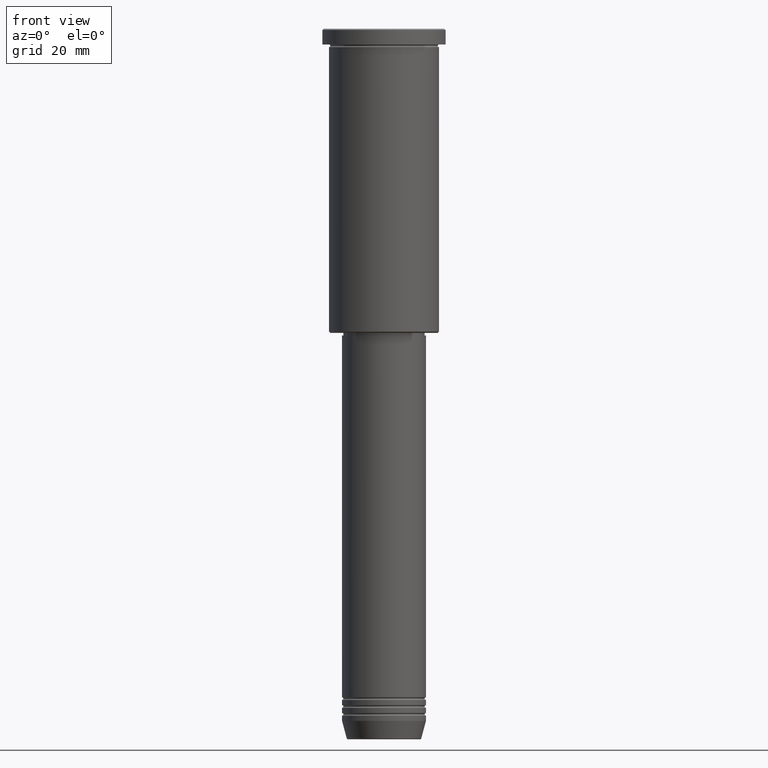
[diagram: clean part render]
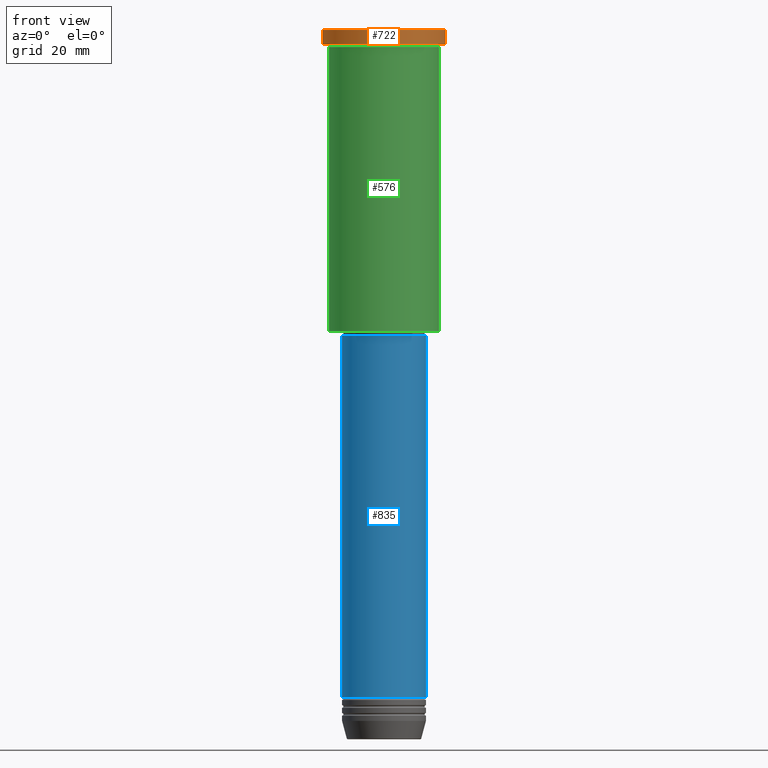
[diagram: same view with three faces highlighted in distinct colors, each labeled with its STEP entity id]
A machine part, front view with three faces highlighted in distinct colors.
Their STEP definitions:

[orange] entity #722 — the highlighted cylindrical surface (partial cylindrical patch) has radius 23.5 mm, axis along (-0, -0, 1).
#38 = FACE_OUTER_BOUND ( 'NONE', #899, .T. ) ;
#49 = CARTESIAN_POINT ( 'NONE',  ( 23.50000000000000000, 0.000000000000000000, 0.000000000000000000 ) ) ;
#50 = DIRECTION ( 'NONE',  ( -0.000000000000000000, -0.000000000000000000, 1.000000000000000000 ) ) ;
#84 = AXIS2_PLACEMENT_3D ( 'NONE', #213, #1138, #494 ) ;
#105 = CARTESIAN_POINT ( 'NONE',  ( 23.50000000000000000, 0.000000000000000000, -5.999999999999994671 ) ) ;
#147 = DIRECTION ( 'NONE',  ( 1.000000000000000000, 0.000000000000000000, 0.000000000000000000 ) ) ;
#149 = EDGE_CURVE ( 'NONE', #356, #553, #524, .T. ) ;
#162 = EDGE_CURVE ( 'NONE', #553, #456, #497, .T. ) ;
#201 = CARTESIAN_POINT ( 'NONE',  ( 23.50000000000000000, 0.000000000000000000, -0.5000000000000004441 ) ) ;
#213 = CARTESIAN_POINT ( 'NONE',  ( 0.000000000000000000, 0.000000000000000000, 0.000000000000000000 ) ) ;
#233 = AXIS2_PLACEMENT_3D ( 'NONE', #614, #974, #147 ) ;
#317 = ORIENTED_EDGE ( 'NONE', *, *, #1137, .F. ) ;
#343 = CARTESIAN_POINT ( 'NONE',  ( -23.50000000000000000, 2.877919977996280320E-15, -0.5000000000000004441 ) ) ;
#356 = VERTEX_POINT ( 'NONE', #105 ) ;
#419 = CYLINDRICAL_SURFACE ( 'NONE', #84, 23.50000000000000000 ) ;
#430 = AXIS2_PLACEMENT_3D ( 'NONE', #564, #1102, #657 ) ;
#451 = VECTOR ( 'NONE', #1061, 1000.000000000000000 ) ;
#456 = VERTEX_POINT ( 'NONE', #343 ) ;
#494 = DIRECTION ( 'NONE',  ( 1.000000000000000000, 0.000000000000000000, 0.000000000000000000 ) ) ;
#497 = CIRCLE ( 'NONE', #233, 23.50000000000000000 ) ;
#524 = LINE ( 'NONE', #49, #451 ) ;
#553 = VERTEX_POINT ( 'NONE', #201 ) ;
#564 = CARTESIAN_POINT ( 'NONE',  ( 0.000000000000000000, 0.000000000000000000, -5.999999999999994671 ) ) ;
#614 = CARTESIAN_POINT ( 'NONE',  ( 0.000000000000000000, 0.000000000000000000, -0.5000000000000004441 ) ) ;
#657 = DIRECTION ( 'NONE',  ( 1.000000000000000000, 0.000000000000000000, 0.000000000000000000 ) ) ;
#669 = CARTESIAN_POINT ( 'NONE',  ( -23.50000000000000000, 2.877919977996280320E-15, -5.999999999999994671 ) ) ;
#722 = ADVANCED_FACE ( 'NONE', ( #38 ), #419, .T. ) ;
#735 = ORIENTED_EDGE ( 'NONE', *, *, #1052, .T. ) ;
#750 = ORIENTED_EDGE ( 'NONE', *, *, #162, .T. ) ;
#770 = LINE ( 'NONE', #1141, #1107 ) ;
#819 = VERTEX_POINT ( 'NONE', #669 ) ;
#899 = EDGE_LOOP ( 'NONE', ( #317, #735, #1040, #750 ) ) ;
#941 = CIRCLE ( 'NONE', #430, 23.50000000000000000 ) ;
#974 = DIRECTION ( 'NONE',  ( 0.000000000000000000, 0.000000000000000000, -1.000000000000000000 ) ) ;
#1040 = ORIENTED_EDGE ( 'NONE', *, *, #149, .T. ) ;
#1052 = EDGE_CURVE ( 'NONE', #819, #356, #941, .T. ) ;
#1061 = DIRECTION ( 'NONE',  ( -0.000000000000000000, -0.000000000000000000, 1.000000000000000000 ) ) ;
#1102 = DIRECTION ( 'NONE',  ( -0.000000000000000000, -0.000000000000000000, 1.000000000000000000 ) ) ;
#1107 = VECTOR ( 'NONE', #50, 1000.000000000000000 ) ;
#1137 = EDGE_CURVE ( 'NONE', #819, #456, #770, .T. ) ;
#1138 = DIRECTION ( 'NONE',  ( -0.000000000000000000, -0.000000000000000000, 1.000000000000000000 ) ) ;
#1141 = CARTESIAN_POINT ( 'NONE',  ( -23.50000000000000000, 2.877919977996280320E-15, 0.000000000000000000 ) ) ;

[blue] entity #835 — the highlighted cylindrical surface (partial cylindrical patch) has radius 16 mm, axis along (-0, -0, 1).
#56 = DIRECTION ( 'NONE',  ( -0.000000000000000000, -0.000000000000000000, 1.000000000000000000 ) ) ;
#71 = EDGE_CURVE ( 'NONE', #721, #821, #937, .T. ) ;
#128 = CARTESIAN_POINT ( 'NONE',  ( -16.00000000000000000, 1.959434878635765131E-15, -255.0000000000000000 ) ) ;
#150 = DIRECTION ( 'NONE',  ( 1.000000000000000000, 0.000000000000000000, 0.000000000000000000 ) ) ;
#204 = EDGE_CURVE ( 'NONE', #719, #721, #530, .T. ) ;
#221 = DIRECTION ( 'NONE',  ( -0.000000000000000000, -0.000000000000000000, 1.000000000000000000 ) ) ;
#250 = LINE ( 'NONE', #1063, #1106 ) ;
#322 = DIRECTION ( 'NONE',  ( -0.000000000000000000, -0.000000000000000000, 1.000000000000000000 ) ) ;
#329 = ORIENTED_EDGE ( 'NONE', *, *, #738, .F. ) ;
#331 = AXIS2_PLACEMENT_3D ( 'NONE', #689, #322, #1035 ) ;
#404 = FACE_OUTER_BOUND ( 'NONE', #1018, .T. ) ;
#447 = VERTEX_POINT ( 'NONE', #499 ) ;
#448 = AXIS2_PLACEMENT_3D ( 'NONE', #862, #514, #150 ) ;
#453 = CIRCLE ( 'NONE', #331, 16.00000000000000000 ) ;
#499 = CARTESIAN_POINT ( 'NONE',  ( -16.00000000000000000, 1.959434878635765131E-15, -117.0000000000000000 ) ) ;
#514 = DIRECTION ( 'NONE',  ( -0.000000000000000000, -0.000000000000000000, 1.000000000000000000 ) ) ;
#530 = CIRCLE ( 'NONE', #962, 16.00000000000000000 ) ;
#587 = CARTESIAN_POINT ( 'NONE',  ( 0.000000000000000000, 0.000000000000000000, -255.0000000000000000 ) ) ;
#625 = ORIENTED_EDGE ( 'NONE', *, *, #204, .T. ) ;
#629 = ORIENTED_EDGE ( 'NONE', *, *, #871, .F. ) ;
#689 = CARTESIAN_POINT ( 'NONE',  ( 0.000000000000000000, 0.000000000000000000, -117.0000000000000000 ) ) ;
#719 = VERTEX_POINT ( 'NONE', #128 ) ;
#721 = VERTEX_POINT ( 'NONE', #784 ) ;
#738 = EDGE_CURVE ( 'NONE', #447, #821, #453, .T. ) ;
#761 = CARTESIAN_POINT ( 'NONE',  ( 16.00000000000000000, 0.000000000000000000, 0.000000000000000000 ) ) ;
#768 = CYLINDRICAL_SURFACE ( 'NONE', #448, 16.00000000000000000 ) ;
#784 = CARTESIAN_POINT ( 'NONE',  ( 16.00000000000000000, 0.000000000000000000, -255.0000000000000000 ) ) ;
#821 = VERTEX_POINT ( 'NONE', #1056 ) ;
#835 = ADVANCED_FACE ( 'NONE', ( #404 ), #768, .T. ) ;
#862 = CARTESIAN_POINT ( 'NONE',  ( 0.000000000000000000, 0.000000000000000000, 0.000000000000000000 ) ) ;
#871 = EDGE_CURVE ( 'NONE', #719, #447, #250, .T. ) ;
#922 = VECTOR ( 'NONE', #1097, 1000.000000000000000 ) ;
#937 = LINE ( 'NONE', #761, #922 ) ;
#962 = AXIS2_PLACEMENT_3D ( 'NONE', #587, #221, #1111 ) ;
#1009 = ORIENTED_EDGE ( 'NONE', *, *, #71, .T. ) ;
#1018 = EDGE_LOOP ( 'NONE', ( #629, #625, #1009, #329 ) ) ;
#1035 = DIRECTION ( 'NONE',  ( 1.000000000000000000, 0.000000000000000000, 0.000000000000000000 ) ) ;
#1056 = CARTESIAN_POINT ( 'NONE',  ( 16.00000000000000000, 0.000000000000000000, -117.0000000000000000 ) ) ;
#1063 = CARTESIAN_POINT ( 'NONE',  ( -16.00000000000000000, 1.959434878635765131E-15, 0.000000000000000000 ) ) ;
#1097 = DIRECTION ( 'NONE',  ( -0.000000000000000000, -0.000000000000000000, 1.000000000000000000 ) ) ;
#1106 = VECTOR ( 'NONE', #56, 1000.000000000000000 ) ;
#1111 = DIRECTION ( 'NONE',  ( 1.000000000000000000, 0.000000000000000000, 0.000000000000000000 ) ) ;

[green] entity #576 — the highlighted cylindrical surface (partial cylindrical patch) has radius 21 mm, axis along (-0, -0, 1).
#3 = CARTESIAN_POINT ( 'NONE',  ( 0.000000000000000000, 0.000000000000000000, -115.4999999999999432 ) ) ;
#9 = LINE ( 'NONE', #481, #335 ) ;
#28 = CARTESIAN_POINT ( 'NONE',  ( 0.000000000000000000, 0.000000000000000000, -6.999999999999994671 ) ) ;
#88 = ORIENTED_EDGE ( 'NONE', *, *, #798, .F. ) ;
#116 = CYLINDRICAL_SURFACE ( 'NONE', #173, 21.00000000000000000 ) ;
#136 = CIRCLE ( 'NONE', #691, 21.00000000000000000 ) ;
#137 = AXIS2_PLACEMENT_3D ( 'NONE', #3, #726, #1178 ) ;
#146 = EDGE_LOOP ( 'NONE', ( #1171, #647, #166, #88 ) ) ;
#166 = ORIENTED_EDGE ( 'NONE', *, *, #783, .T. ) ;
#170 = DIRECTION ( 'NONE',  ( -0.000000000000000000, -0.000000000000000000, 1.000000000000000000 ) ) ;
#173 = AXIS2_PLACEMENT_3D ( 'NONE', #1180, #818, #652 ) ;
#208 = FACE_OUTER_BOUND ( 'NONE', #146, .T. ) ;
#218 = VERTEX_POINT ( 'NONE', #582 ) ;
#262 = EDGE_CURVE ( 'NONE', #938, #613, #693, .T. ) ;
#327 = DIRECTION ( 'NONE',  ( -0.000000000000000000, -0.000000000000000000, 1.000000000000000000 ) ) ;
#335 = VECTOR ( 'NONE', #170, 1000.000000000000000 ) ;
#470 = CARTESIAN_POINT ( 'NONE',  ( 21.00000000000000000, 0.000000000000000000, -115.4999999999999432 ) ) ;
#481 = CARTESIAN_POINT ( 'NONE',  ( -21.00000000000000000, 2.571758278209441661E-15, 0.000000000000000000 ) ) ;
#533 = VERTEX_POINT ( 'NONE', #833 ) ;
#576 = ADVANCED_FACE ( 'NONE', ( #208 ), #116, .T. ) ;
#582 = CARTESIAN_POINT ( 'NONE',  ( 21.00000000000000000, 0.000000000000000000, -6.999999999999994671 ) ) ;
#613 = VERTEX_POINT ( 'NONE', #470 ) ;
#647 = ORIENTED_EDGE ( 'NONE', *, *, #262, .T. ) ;
#652 = DIRECTION ( 'NONE',  ( 1.000000000000000000, 0.000000000000000000, 0.000000000000000000 ) ) ;
#680 = CARTESIAN_POINT ( 'NONE',  ( 21.00000000000000000, 0.000000000000000000, 0.000000000000000000 ) ) ;
#684 = DIRECTION ( 'NONE',  ( 1.000000000000000000, 0.000000000000000000, 0.000000000000000000 ) ) ;
#691 = AXIS2_PLACEMENT_3D ( 'NONE', #28, #969, #684 ) ;
#693 = CIRCLE ( 'NONE', #137, 21.00000000000000000 ) ;
#726 = DIRECTION ( 'NONE',  ( -0.000000000000000000, -0.000000000000000000, 1.000000000000000000 ) ) ;
#783 = EDGE_CURVE ( 'NONE', #613, #218, #1133, .T. ) ;
#798 = EDGE_CURVE ( 'NONE', #533, #218, #136, .T. ) ;
#818 = DIRECTION ( 'NONE',  ( -0.000000000000000000, -0.000000000000000000, 1.000000000000000000 ) ) ;
#833 = CARTESIAN_POINT ( 'NONE',  ( -21.00000000000000000, 2.571758278209441661E-15, -6.999999999999994671 ) ) ;
#898 = VECTOR ( 'NONE', #327, 1000.000000000000000 ) ;
#938 = VERTEX_POINT ( 'NONE', #1069 ) ;
#969 = DIRECTION ( 'NONE',  ( -0.000000000000000000, -0.000000000000000000, 1.000000000000000000 ) ) ;
#987 = EDGE_CURVE ( 'NONE', #938, #533, #9, .T. ) ;
#1069 = CARTESIAN_POINT ( 'NONE',  ( -21.00000000000000000, 2.571758278209441661E-15, -115.4999999999999432 ) ) ;
#1133 = LINE ( 'NONE', #680, #898 ) ;
#1171 = ORIENTED_EDGE ( 'NONE', *, *, #987, .F. ) ;
#1178 = DIRECTION ( 'NONE',  ( -1.000000000000000000, 0.000000000000000000, 0.000000000000000000 ) ) ;
#1180 = CARTESIAN_POINT ( 'NONE',  ( 0.000000000000000000, 0.000000000000000000, 0.000000000000000000 ) ) ;